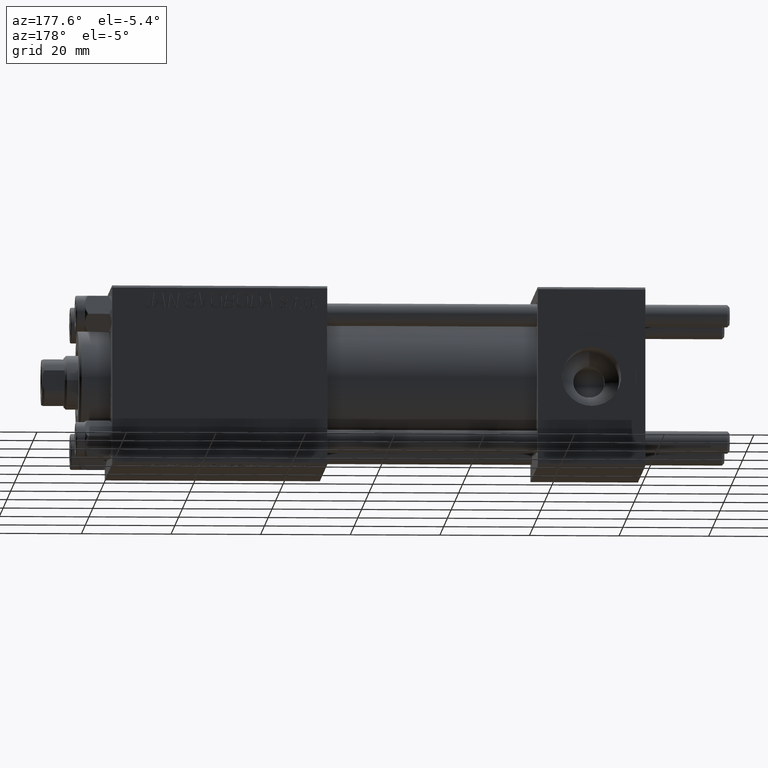
[diagram: clean part render]
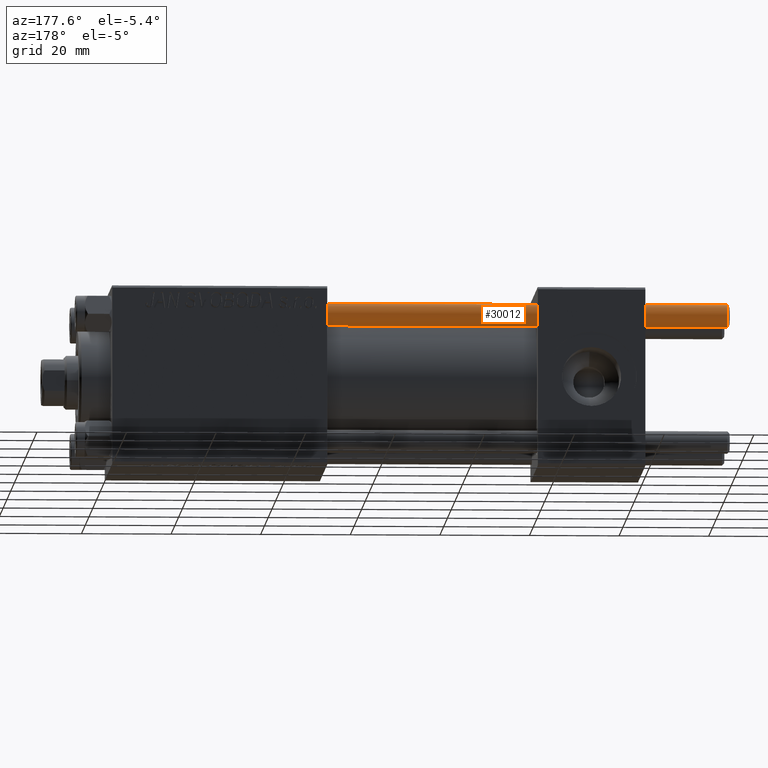
[diagram: same view with one face highlighted and labeled with its STEP entity id]
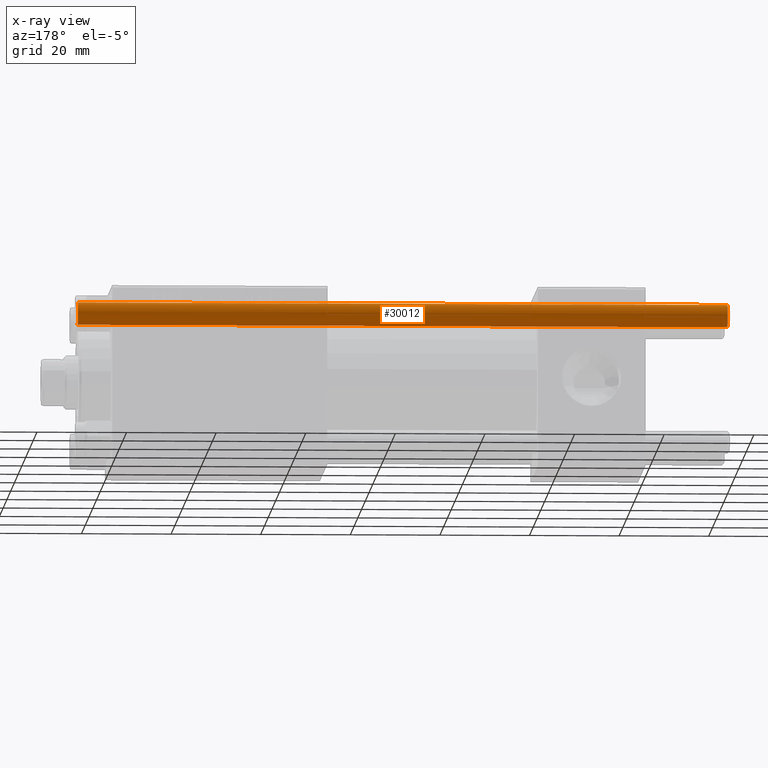
[diagram: x-ray of the same camera — body ghosted, the highlighted face saturated]
A machine part, auxiliary view. The second image highlights one B-rep face of the part: STEP entity #30012.
The next image is the same camera in x-ray: the body ghosted, the highlighted face saturated — about 0% of this face is hidden behind the body in this view.
In plain terms, the highlighted cylindrical surface (edge-blend (fillet) strip) has radius 2.5 mm, axis along (-1, -0, -0).
Its self-contained STEP definition (entity closure, byte-faithful):
#31 = VERTEX_POINT ( 'NONE', #6335 ) ;
#1730 = CARTESIAN_POINT ( 'NONE',  ( -2.500000000000000000, 0.000000000000000000, 145.5000000000000284 ) ) ;
#2325 = AXIS2_PLACEMENT_3D ( 'NONE', #49919, #29495, #30722 ) ;
#2936 = LINE ( 'NONE', #18331, #6181 ) ;
#5848 = VERTEX_POINT ( 'NONE', #24578 ) ;
#6181 = VECTOR ( 'NONE', #10265, 1000.000000000000000 ) ;
#6335 = CARTESIAN_POINT ( 'NONE',  ( -2.500000000000000000, 0.000000000000000000, 0.5000000000000559552 ) ) ;
#6478 = CARTESIAN_POINT ( 'NONE',  ( 0.000000000000000000, 0.000000000000000000, 0.5000000000000559552 ) ) ;
#9762 = EDGE_CURVE ( 'NONE', #28174, #5848, #49655, .T. ) ;
#10265 = DIRECTION ( 'NONE',  ( -0.000000000000000000, -0.000000000000000000, -1.000000000000000000 ) ) ;
#10861 = CIRCLE ( 'NONE', #21316, 2.500000000000000000 ) ;
#11280 = DIRECTION ( 'NONE',  ( -0.000000000000000000, -0.000000000000000000, -1.000000000000000000 ) ) ;
#16387 = EDGE_CURVE ( 'NONE', #26670, #28174, #10861, .T. ) ;
#16952 = ORIENTED_EDGE ( 'NONE', *, *, #9762, .T. ) ;
#18331 = CARTESIAN_POINT ( 'NONE',  ( -2.500000000000000000, 0.000000000000000000, 146.0000000000000000 ) ) ;
#18450 = CARTESIAN_POINT ( 'NONE',  ( 2.500000000000000000, 3.061616997868383141E-16, 145.5000000000000284 ) ) ;
#21316 = AXIS2_PLACEMENT_3D ( 'NONE', #26269, #42175, #37397 ) ;
#21932 = EDGE_CURVE ( 'NONE', #26670, #31, #2936, .T. ) ;
#22621 = DIRECTION ( 'NONE',  ( 1.000000000000000000, 0.000000000000000000, 0.000000000000000000 ) ) ;
#22915 = FACE_OUTER_BOUND ( 'NONE', #30516, .T. ) ;
#24459 = VECTOR ( 'NONE', #11280, 1000.000000000000000 ) ;
#24578 = CARTESIAN_POINT ( 'NONE',  ( 2.500000000000000000, 3.061616997868383141E-16, 0.5000000000000559552 ) ) ;
#24914 = AXIS2_PLACEMENT_3D ( 'NONE', #6478, #37531, #22621 ) ;
#26269 = CARTESIAN_POINT ( 'NONE',  ( 0.000000000000000000, 0.000000000000000000, 145.5000000000000284 ) ) ;
#26670 = VERTEX_POINT ( 'NONE', #1730 ) ;
#28174 = VERTEX_POINT ( 'NONE', #18450 ) ;
#29495 = DIRECTION ( 'NONE',  ( -0.000000000000000000, -0.000000000000000000, -1.000000000000000000 ) ) ;
#30012 = ADVANCED_FACE ( 'NONE', ( #22915 ), #34511, .T. ) ;
#30449 = CARTESIAN_POINT ( 'NONE',  ( 2.500000000000000000, 3.061616997868383141E-16, 146.0000000000000000 ) ) ;
#30516 = EDGE_LOOP ( 'NONE', ( #35946, #16952, #33416, #31135 ) ) ;
#30722 = DIRECTION ( 'NONE',  ( -1.000000000000000000, 0.000000000000000000, 0.000000000000000000 ) ) ;
#31135 = ORIENTED_EDGE ( 'NONE', *, *, #21932, .F. ) ;
#31296 = EDGE_CURVE ( 'NONE', #5848, #31, #41056, .T. ) ;
#33416 = ORIENTED_EDGE ( 'NONE', *, *, #31296, .T. ) ;
#34511 = CYLINDRICAL_SURFACE ( 'NONE', #2325, 2.500000000000000000 ) ;
#35946 = ORIENTED_EDGE ( 'NONE', *, *, #16387, .T. ) ;
#37397 = DIRECTION ( 'NONE',  ( 1.000000000000000000, 0.000000000000000000, 0.000000000000000000 ) ) ;
#37531 = DIRECTION ( 'NONE',  ( -0.000000000000000000, -0.000000000000000000, 1.000000000000000000 ) ) ;
#41056 = CIRCLE ( 'NONE', #24914, 2.500000000000000000 ) ;
#42175 = DIRECTION ( 'NONE',  ( 0.000000000000000000, 0.000000000000000000, -1.000000000000000000 ) ) ;
#49655 = LINE ( 'NONE', #30449, #24459 ) ;
#49919 = CARTESIAN_POINT ( 'NONE',  ( 0.000000000000000000, 0.000000000000000000, 146.0000000000000000 ) ) ;